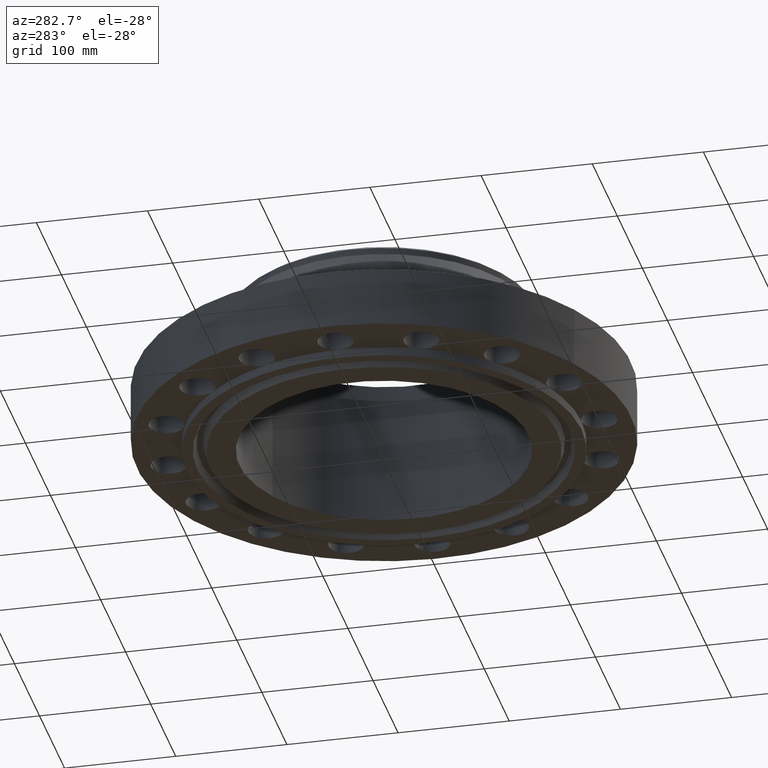
[diagram: clean part render]
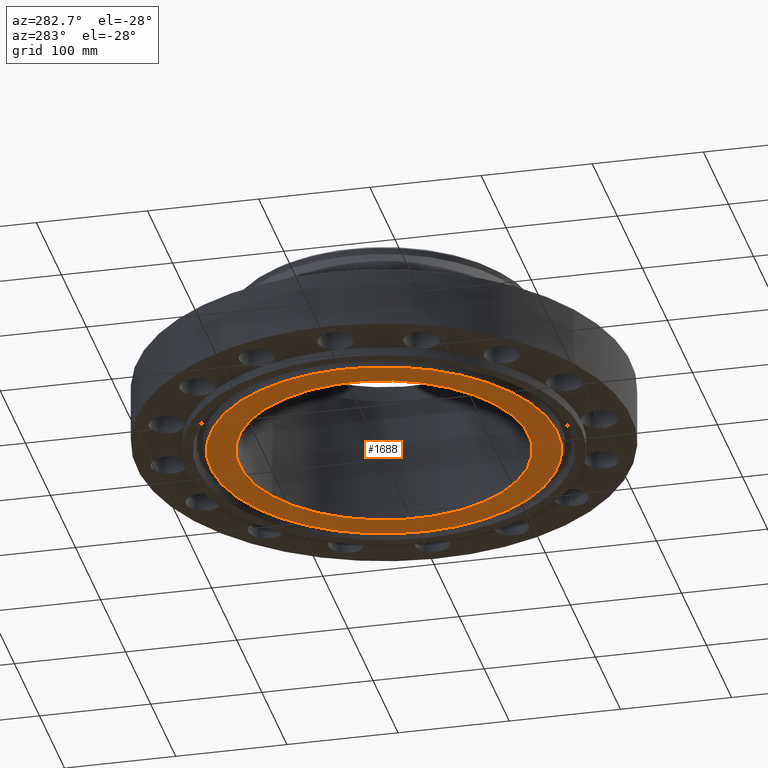
[diagram: same view with one face highlighted and labeled with its STEP entity id]
A machine part, auxiliary view. The second image highlights one B-rep face of the part: STEP entity #1688.
In plain terms, the highlighted planar face has unit normal (0, 0, -1).
Its self-contained STEP definition (entity closure, byte-faithful):
#371=AXIS2_PLACEMENT_3D('Circle Axis2P3D',#369,#370,$) ;
#395=AXIS2_PLACEMENT_3D('Circle Axis2P3D',#393,#394,$) ;
#1641=AXIS2_PLACEMENT_3D('Plane Axis2P3D',#1638,#1639,#1640) ;
#1668=AXIS2_PLACEMENT_3D('Circle Axis2P3D',#1666,#1667,$) ;
#1677=AXIS2_PLACEMENT_3D('Circle Axis2P3D',#1675,#1676,$) ;
#366=CARTESIAN_POINT('Vertex',(2.45705588536,4.49761062971,-0.313000000001)) ;
#369=CARTESIAN_POINT('Axis2P3D Location',(0.,0.,-0.313000000001)) ;
#373=CARTESIAN_POINT('Vertex',(-2.45705588536,-4.49761062971,-0.313000000001)) ;
#393=CARTESIAN_POINT('Axis2P3D Location',(0.,0.,-0.313000000001)) ;
#1638=CARTESIAN_POINT('Axis2P3D Location',(0.,5.12500000002,-0.313000000001)) ;
#1666=CARTESIAN_POINT('Axis2P3D Location',(1.1189649382E-015,0.,-0.313000000001)) ;
#1670=CARTESIAN_POINT('Vertex',(-2.94391251981,5.38879572131,-0.313000000001)) ;
#1672=CARTESIAN_POINT('Vertex',(2.94391251981,-5.38879572131,-0.313000000001)) ;
#1675=CARTESIAN_POINT('Axis2P3D Location',(-1.1189649382E-015,0.,-0.313000000001)) ;
#370=DIRECTION('Axis2P3D Direction',(0.,0.,-0.0393700787402)) ;
#394=DIRECTION('Axis2P3D Direction',(0.,0.,-0.0393700787402)) ;
#1639=DIRECTION('Axis2P3D Direction',(0.,0.,-0.0393700787402)) ;
#1640=DIRECTION('Axis2P3D XDirection',(0.0393700787402,0.,0.)) ;
#1667=DIRECTION('Axis2P3D Direction',(0.,0.,-0.0393700787402)) ;
#1676=DIRECTION('Axis2P3D Direction',(0.,0.,-0.0393700787402)) ;
#1681=ORIENTED_EDGE('',*,*,#1674,.T.) ;
#1682=ORIENTED_EDGE('',*,*,#1679,.T.) ;
#1685=ORIENTED_EDGE('',*,*,#375,.F.) ;
#1686=ORIENTED_EDGE('',*,*,#397,.F.) ;
#1687=FACE_BOUND('',#1684,.T.) ;
#1688=ADVANCED_FACE('PartBody',(#1683,#1687),#1642,.T.) ;
#372=CIRCLE('generated circle',#371,5.12500000002) ;
#396=CIRCLE('generated circle',#395,5.12500000002) ;
#1669=CIRCLE('generated circle',#1668,6.14050000002) ;
#1678=CIRCLE('generated circle',#1677,6.14050000002) ;
#375=EDGE_CURVE('',#367,#374,#372,.T.) ;
#397=EDGE_CURVE('',#374,#367,#396,.T.) ;
#1674=EDGE_CURVE('',#1671,#1673,#1669,.T.) ;
#1679=EDGE_CURVE('',#1673,#1671,#1678,.T.) ;
#1680=EDGE_LOOP('',(#1681,#1682)) ;
#1684=EDGE_LOOP('',(#1685,#1686)) ;
#1683=FACE_OUTER_BOUND('',#1680,.T.) ;
#1642=PLANE('',#1641) ;
#367=VERTEX_POINT('',#366) ;
#374=VERTEX_POINT('',#373) ;
#1671=VERTEX_POINT('',#1670) ;
#1673=VERTEX_POINT('',#1672) ;